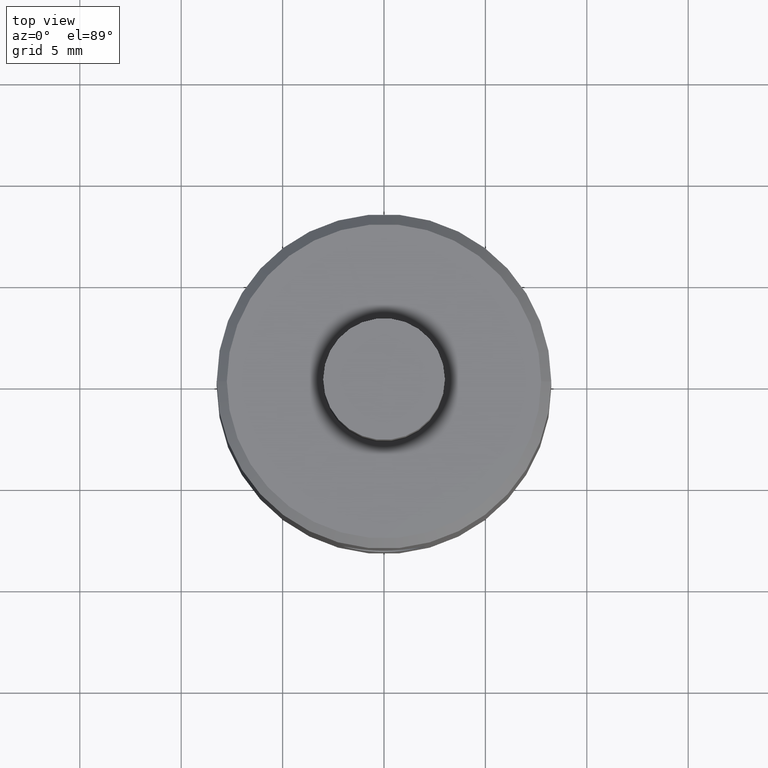
[diagram: clean part render]
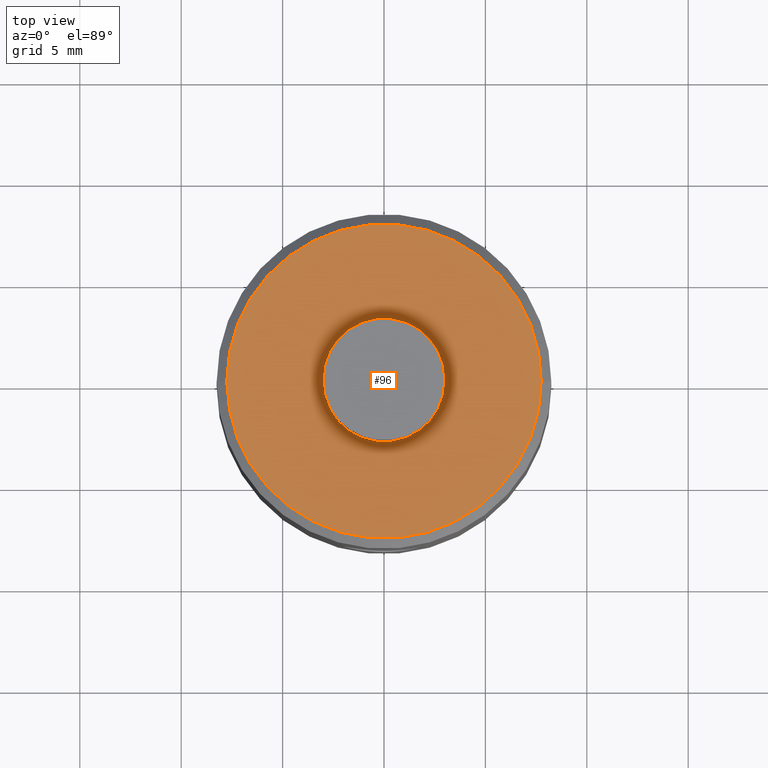
[diagram: same view with one face highlighted and labeled with its STEP entity id]
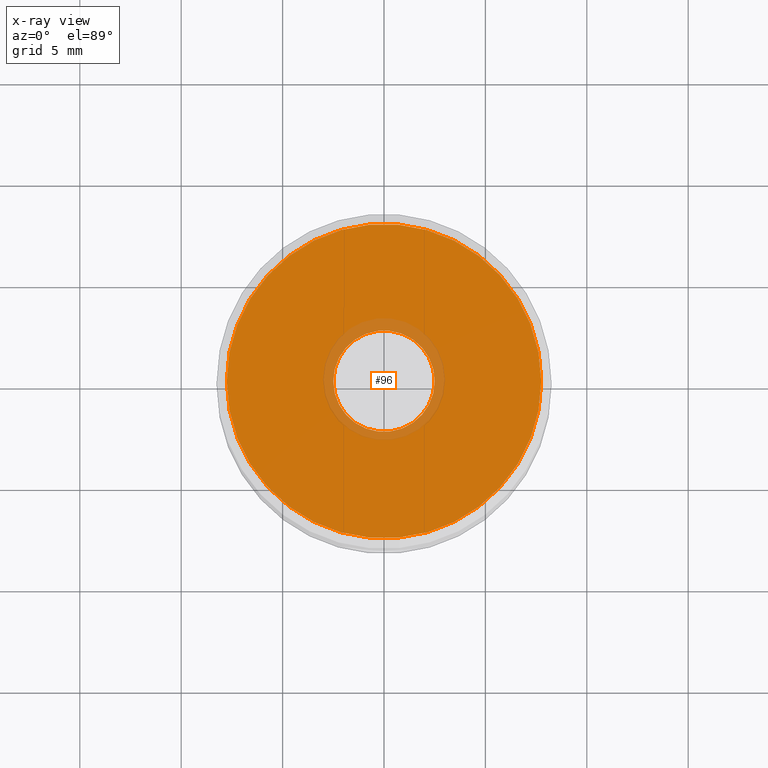
[diagram: x-ray of the same camera — body ghosted, the highlighted face saturated]
A machine part, top view. The second image highlights one B-rep face of the part: STEP entity #96.
The next image is the same camera in x-ray: the body ghosted, the highlighted face saturated — about 5% of this face is hidden behind the body in this view.
In plain terms, the highlighted planar face has unit normal (0, 0, 1).
Its self-contained STEP definition (entity closure, byte-faithful):
#6 = FACE_BOUND ( 'NONE', #394, .T. ) ;
#14 = CARTESIAN_POINT ( 'NONE',  ( 0.0000000000000000000, 0.0000000000000000000, 8.000000000000000000 ) ) ;
#18 = CARTESIAN_POINT ( 'NONE',  ( 2.500000000000000000, 3.061616997868383100E-016, 8.000000000000000000 ) ) ;
#22 = DIRECTION ( 'NONE',  ( 1.000000000000000000, 0.0000000000000000000, 0.0000000000000000000 ) ) ;
#47 = CIRCLE ( 'NONE', #280, 2.500000000000000000 ) ;
#51 = AXIS2_PLACEMENT_3D ( 'NONE', #14, #498, #22 ) ;
#92 = PLANE ( 'NONE',  #447 ) ;
#96 = ADVANCED_FACE ( 'NONE', ( #157, #6 ), #92, .T. ) ;
#104 = CARTESIAN_POINT ( 'NONE',  ( 7.749999999999989300, 9.797174393178819700E-016, 8.000000000000000000 ) ) ;
#113 = CARTESIAN_POINT ( 'NONE',  ( 0.0000000000000000000, 0.0000000000000000000, 8.000000000000000000 ) ) ;
#131 = VERTEX_POINT ( 'NONE', #104 ) ;
#134 = EDGE_CURVE ( 'NONE', #551, #131, #495, .T. ) ;
#157 = FACE_OUTER_BOUND ( 'NONE', #675, .T. ) ;
#167 = CARTESIAN_POINT ( 'NONE',  ( 0.0000000000000000000, 0.0000000000000000000, 8.000000000000000000 ) ) ;
#171 = DIRECTION ( 'NONE',  ( 0.0000000000000000000, 0.0000000000000000000, 1.000000000000000000 ) ) ;
#188 = AXIS2_PLACEMENT_3D ( 'NONE', #113, #246, #539 ) ;
#225 = DIRECTION ( 'NONE',  ( 1.000000000000000000, 0.0000000000000000000, 0.0000000000000000000 ) ) ;
#230 = EDGE_CURVE ( 'NONE', #625, #277, #748, .T. ) ;
#246 = DIRECTION ( 'NONE',  ( 0.0000000000000000000, 0.0000000000000000000, 1.000000000000000000 ) ) ;
#253 = CARTESIAN_POINT ( 'NONE',  ( -7.749999999999989300, 0.0000000000000000000, 8.000000000000000000 ) ) ;
#277 = VERTEX_POINT ( 'NONE', #18 ) ;
#280 = AXIS2_PLACEMENT_3D ( 'NONE', #384, #616, #439 ) ;
#285 = CARTESIAN_POINT ( 'NONE',  ( 0.0000000000000000000, 0.0000000000000000000, 8.000000000000000000 ) ) ;
#327 = EDGE_CURVE ( 'NONE', #131, #551, #393, .T. ) ;
#345 = DIRECTION ( 'NONE',  ( 0.0000000000000000000, 0.0000000000000000000, 1.000000000000000000 ) ) ;
#353 = DIRECTION ( 'NONE',  ( 1.000000000000000000, 0.0000000000000000000, -0.0000000000000000000 ) ) ;
#384 = CARTESIAN_POINT ( 'NONE',  ( 0.0000000000000000000, 0.0000000000000000000, 8.000000000000000000 ) ) ;
#393 = CIRCLE ( 'NONE', #51, 7.749999999999989300 ) ;
#394 = EDGE_LOOP ( 'NONE', ( #505, #751 ) ) ;
#407 = AXIS2_PLACEMENT_3D ( 'NONE', #285, #345, #225 ) ;
#439 = DIRECTION ( 'NONE',  ( 1.000000000000000000, 0.0000000000000000000, 0.0000000000000000000 ) ) ;
#447 = AXIS2_PLACEMENT_3D ( 'NONE', #167, #171, #353 ) ;
#465 = ORIENTED_EDGE ( 'NONE', *, *, #327, .T. ) ;
#495 = CIRCLE ( 'NONE', #407, 7.749999999999989300 ) ;
#498 = DIRECTION ( 'NONE',  ( 0.0000000000000000000, 0.0000000000000000000, 1.000000000000000000 ) ) ;
#505 = ORIENTED_EDGE ( 'NONE', *, *, #230, .F. ) ;
#539 = DIRECTION ( 'NONE',  ( 1.000000000000000000, 0.0000000000000000000, 0.0000000000000000000 ) ) ;
#551 = VERTEX_POINT ( 'NONE', #253 ) ;
#582 = EDGE_CURVE ( 'NONE', #277, #625, #47, .T. ) ;
#616 = DIRECTION ( 'NONE',  ( 0.0000000000000000000, 0.0000000000000000000, 1.000000000000000000 ) ) ;
#625 = VERTEX_POINT ( 'NONE', #731 ) ;
#627 = ORIENTED_EDGE ( 'NONE', *, *, #134, .T. ) ;
#675 = EDGE_LOOP ( 'NONE', ( #627, #465 ) ) ;
#731 = CARTESIAN_POINT ( 'NONE',  ( -2.500000000000000000, 0.0000000000000000000, 8.000000000000000000 ) ) ;
#748 = CIRCLE ( 'NONE', #188, 2.500000000000000000 ) ;
#751 = ORIENTED_EDGE ( 'NONE', *, *, #582, .F. ) ;